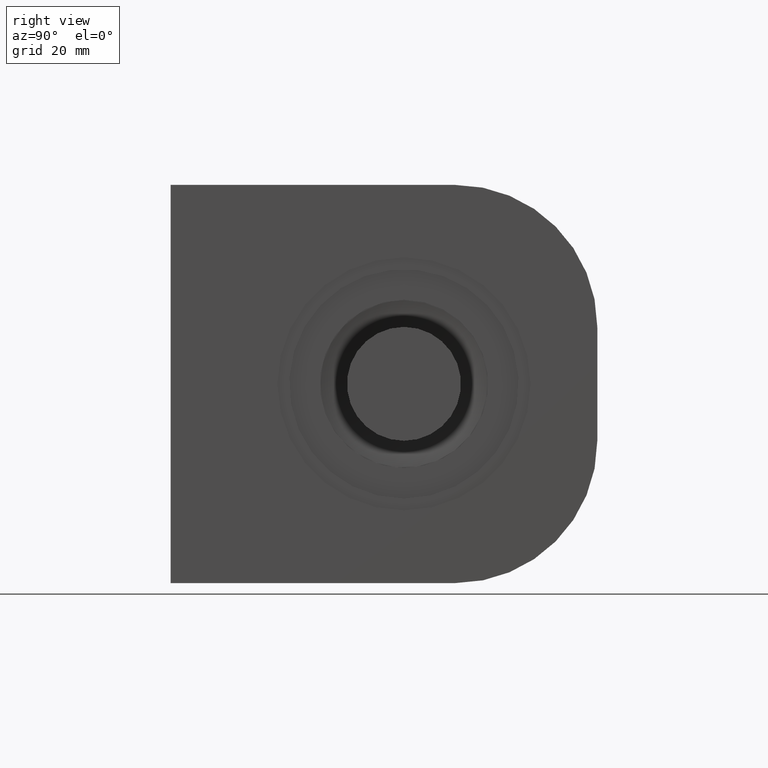
[diagram: clean part render]
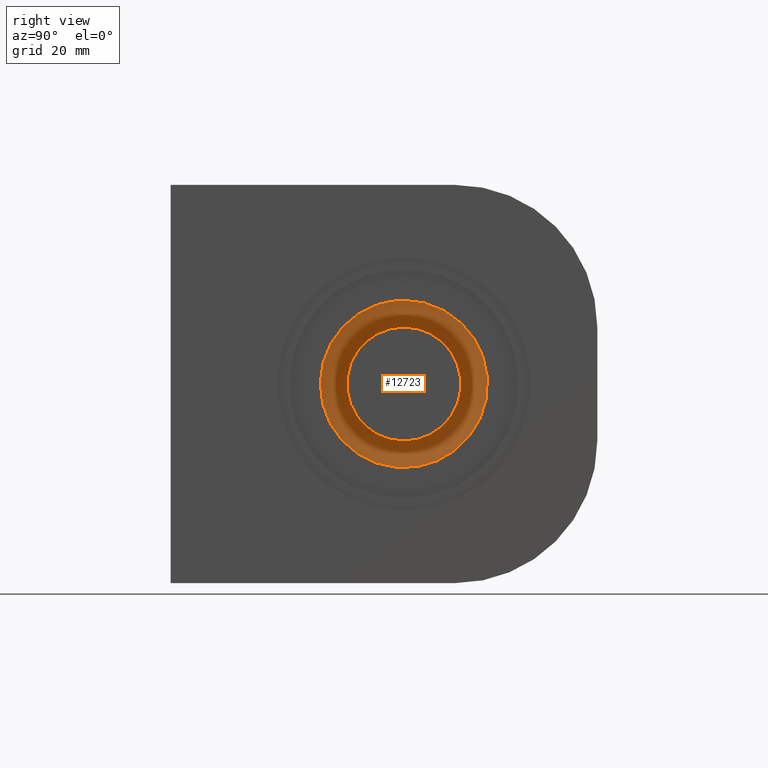
[diagram: same view with one face highlighted and labeled with its STEP entity id]
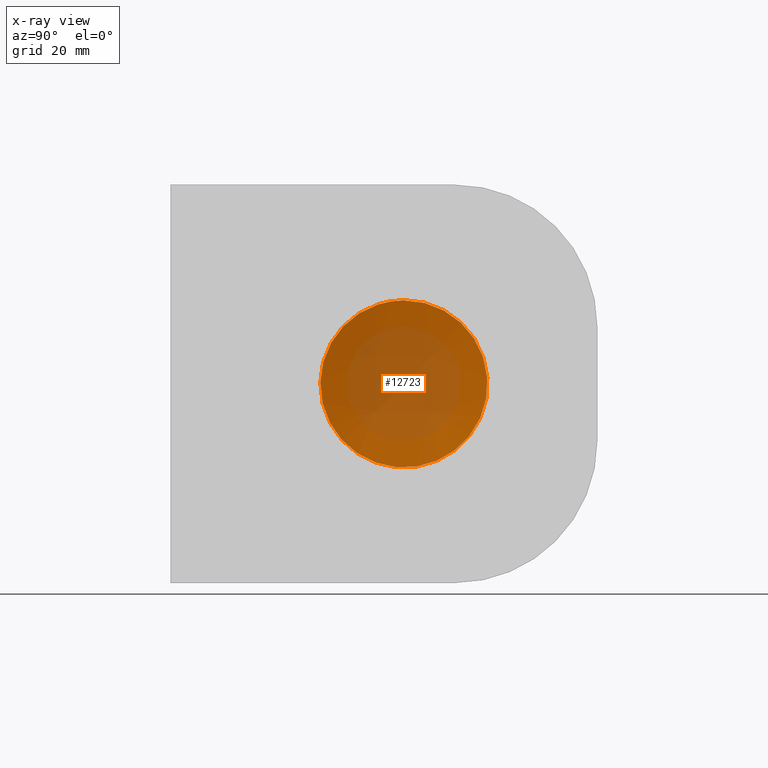
[diagram: x-ray of the same camera — body ghosted, the highlighted face saturated]
A machine part, right view. The second image highlights one B-rep face of the part: STEP entity #12723.
The next image is the same camera in x-ray: the body ghosted, the highlighted face saturated — about 46% of this face is hidden behind the body in this view.
In plain terms, the highlighted face is a freeform B-spline surface patch.
Its self-contained STEP definition (entity closure, byte-faithful):
#261 = CARTESIAN_POINT ( 'NONE',  ( 32.85015582985248273, 4.716279450311944288E-15, 14.70000087405083633 ) ) ;
#330 = CARTESIAN_POINT ( 'NONE',  ( 32.85015582985246141, 13.21653011185657434, 6.507253882928372590 ) ) ;
#537 = CARTESIAN_POINT ( 'NONE',  ( 32.85015582985248983, -14.69948976520591266, 0.9664759175423631721 ) ) ;
#601 = CARTESIAN_POINT ( 'NONE',  ( 32.85015582985246141, -4.724379164370713369, 13.92849792696717870 ) ) ;
#676 = CARTESIAN_POINT ( 'NONE',  ( 32.85015582985246141, -13.60138692752004808, 5.637251090164133949 ) ) ;
#752 = CARTESIAN_POINT ( 'NONE',  ( 32.85015582985248983, 11.95121691344251325, -8.572609143862390368 ) ) ;
#816 = CARTESIAN_POINT ( 'NONE',  ( 32.85015582985248273, 7.340444195356165658, -12.74515090680997709 ) ) ;
#1461 = CARTESIAN_POINT ( 'NONE',  ( 32.85015582985248983, 14.67690835760033607, 0.9534520726033010041 ) ) ;
#1519 = CARTESIAN_POINT ( 'NONE',  ( 32.85015582985251115, 6.515685621695420870, 13.18589888408722999 ) ) ;
#1589 = CARTESIAN_POINT ( 'NONE',  ( 32.85015582985248983, -11.08548388801033013, -9.702749700794857546 ) ) ;
#1658 = CARTESIAN_POINT ( 'NONE',  ( 32.85015582985248273, 14.32172728553158869, -3.347781939397564521 ) ) ;
#1724 = CARTESIAN_POINT ( 'NONE',  ( 32.85015582985251115, 13.92370913889226358, -4.738550460901256756 ) ) ;
#1763 = CARTESIAN_POINT ( 'NONE',  ( 34.23497730599272160, 14.89193881312068513, 14.62322130951245569 ) ) ;
#1803 = CARTESIAN_POINT ( 'NONE',  ( 32.85015582985246141, -6.074226797577788162, -13.39500687272376211 ) ) ;
#1875 = CARTESIAN_POINT ( 'NONE',  ( 32.85015582985246851, -14.70025332006685481, -0.4715298111781519030 ) ) ;
#2443 = CARTESIAN_POINT ( 'NONE',  ( 32.85015582985248273, 9.724707643714241456, 11.06531056377619215 ) ) ;
#2522 = CARTESIAN_POINT ( 'NONE',  ( 32.85015582985246851, 14.58336730005053461, 1.909478458628658837 ) ) ;
#2626 = FACE_OUTER_BOUND ( 'NONE', #12839, .T. ) ;
#2649 = EDGE_CURVE ( 'NONE', #12695, #12695, #5916, .T. ) ;
#2653 = CARTESIAN_POINT ( 'NONE',  ( 32.85015582985246141, 1.907536494845974984, -14.60767108063911301 ) ) ;
#2722 = CARTESIAN_POINT ( 'NONE',  ( 32.85015582985247562, -1.931370670582182481, -14.58064134336019180 ) ) ;
#2790 = CARTESIAN_POINT ( 'NONE',  ( 32.85015582985249694, -14.23019108730799687, -3.809914394569885676 ) ) ;
#2859 = CARTESIAN_POINT ( 'NONE',  ( 32.85015582985244720, -12.49078725903331488, -7.765285126958984208 ) ) ;
#2899 = CARTESIAN_POINT ( 'NONE',  ( 30.58082104544346080, -5.071706101898692864, -5.104262263570237046 ) ) ;
#2934 = CARTESIAN_POINT ( 'NONE',  ( 32.85015582985251115, 14.20485142380838361, -3.813886820883460427 ) ) ;
#3509 = CARTESIAN_POINT ( 'NONE',  ( 32.85015582985248983, 4.747303219379862327, 13.92062756380942368 ) ) ;
#3577 = CARTESIAN_POINT ( 'NONE',  ( 32.85015582985248273, 14.32758696798123488, 3.322570405523387560 ) ) ;
#3752 = CARTESIAN_POINT ( 'NONE',  ( 32.42654214296586446, -5.071706101898693753, 14.95981775028612226 ) ) ;
#3779 = CARTESIAN_POINT ( 'NONE',  ( 32.85015582985262483, -14.60610915616239502, 1.920253528631514328 ) ) ;
#3821 = CARTESIAN_POINT ( 'NONE',  ( 32.43853772883895203, 4.995297234017439969, -15.04970087381386179 ) ) ;
#3854 = CARTESIAN_POINT ( 'NONE',  ( 32.85015582985248983, -13.19287585655082218, -6.501630015325864598 ) ) ;
#3924 = CARTESIAN_POINT ( 'NONE',  ( 32.85015582985248273, 7.757158542403787216, -12.49603407010524769 ) ) ;
#3962 = CARTESIAN_POINT ( 'NONE',  ( 30.57048648402142277, 4.995297234017439969, 5.013476809110281707 ) ) ;
#3988 = CARTESIAN_POINT ( 'NONE',  ( 32.85015582985246141, -9.699856092166765364, 11.05611330955711047 ) ) ;
#4063 = CARTESIAN_POINT ( 'NONE',  ( 32.85015582985251115, -14.67712280647474898, -0.9520970783564954854 ) ) ;
#4570 = CARTESIAN_POINT ( 'NONE',  ( 32.85015582985244720, 6.082227605250890790, 13.39125538244988967 ) ) ;
#4636 = CARTESIAN_POINT ( 'NONE',  ( 32.85015582985249694, 13.76942185271468233, 5.169699840264342150 ) ) ;
#4702 = CARTESIAN_POINT ( 'NONE',  ( 32.85015582985251115, 14.60309699563992858, -1.938439182494420709 ) ) ;
#4847 = CARTESIAN_POINT ( 'NONE',  ( 32.85015582985246851, 6.492299388689056094, -13.19738766840335309 ) ) ;
#4913 = CARTESIAN_POINT ( 'NONE',  ( 32.85015582985248983, -12.48791897271983942, 7.770164659567750043 ) ) ;
#4989 = CARTESIAN_POINT ( 'NONE',  ( 32.85015582985249694, 12.75320002132371933, -7.373646662755956704 ) ) ;
#5057 = CARTESIAN_POINT ( 'NONE',  ( 32.85015582985247562, -7.776267949198655494, -12.48394686389401720 ) ) ;
#5120 = CARTESIAN_POINT ( 'NONE',  ( 32.85015582985249694, 3.801288419138585617, -14.20816652772803401 ) ) ;
#5770 = CARTESIAN_POINT ( 'NONE',  ( 32.85015582985248983, 14.69900370440910464, -0.9842799975894798159 ) ) ;
#5905 = CARTESIAN_POINT ( 'NONE',  ( 32.85015582985251825, -10.05638334675024836, 10.73261802250997476 ) ) ;
#5916 = B_SPLINE_CURVE_WITH_KNOTS ( 'NONE', 3,
 ( #261, #8022, #12311, #11194, #10984, #3509, #13159, #4570, #1519, #10066, #8869, #7807, #2443, #11132, #6741, #11060, #330, #4636, #8935, #13228, #3577, #7884, #2522, #1461, #8999, #5770, #4702, #1658, #2934, #1724, #13499, #6115, #4989, #752, #10203, #10486, #11332, #10271, #7233, #3924, #816, #4847, #6187, #13570, #5120, #8088, #2653, #12378, #10424, #9283, #2722, #8225, #12511, #7014, #1803, #9137, #13435, #5057, #10347, #7150, #1589, #12442, #2859, #9201, #3854, #9418, #6037, #2790, #11468, #7082, #4063, #1875, #537, #3779, #13703, #9352, #13637, #676, #5970, #11539, #4913, #8157, #6945, #5905, #3988, #8290, #8367, #11262, #12581, #11397, #601, #9632, #6321, #13849, #9565, #11816 ),
 .UNSPECIFIED., .T., .F.,
 ( 4, 2, 2, 2, 2, 2, 2, 2, 2, 2, 2, 2, 2, 2, 2, 2, 2, 2, 2, 2, 2, 1, 2, 2, 2, 2, 2, 2, 2, 2, 2, 2, 2, 2, 2, 2, 2, 2, 2, 1, 2, 2, 2, 2, 2, 2, 2, 2, 4 ),
 ( 0.000000000000000000, 0.002897332354936786418, 0.004345998532405180061, 0.005794664709873572836, 0.007243330887341966479, 0.008691997064810360121, 0.01158932941974714567, 0.01448666177468393296, 0.01738399412962072024, 0.01883266030708911215, 0.02028132648455750059, 0.02172999266202589597, 0.02317865883949428787, 0.02607599119443107169, 0.02752465737189946013, 0.02897332354936785551, 0.03187065590430463585, 0.03331932208177302429, 0.03476798825924141273, 0.03766532061417818961, 0.03911398679164657805, 0.04056265296911497342, 0.04201131914658336880, 0.04345998532405176418, 0.04635731767898854799, 0.04780598385645693643, 0.04925465003392533181, 0.05215198238886212256, 0.05360064856633050406, 0.05504931474379889944, 0.05794664709873569020, 0.06084397945367247401, 0.06229264563114086939, 0.06374131180860927171, 0.06663864416354604858, 0.06808731034101446478, 0.06953597651848286709, 0.07243330887341965785, 0.07388197505088807404, 0.07533064122835646248, 0.07677930740582486480, 0.07822797358329326711, 0.08112530593823007175, 0.08257397211569847406, 0.08402263829316687638, 0.08691997064810366713, 0.08836863682557206945, 0.08981730300304045789, 0.09271463535797724864 ),
 .UNSPECIFIED. ) ;
#5970 = CARTESIAN_POINT ( 'NONE',  ( 32.85015582985246851, -13.19167747656605449, 6.503933649586759458 ) ) ;
#6037 = CARTESIAN_POINT ( 'NONE',  ( 32.85015582985246851, -13.95276918131503052, -4.726250539920865634 ) ) ;
#6079 = CARTESIAN_POINT ( 'NONE',  ( 34.25122278073528292, 14.89193881312068513, -14.71023562917435257 ) ) ;
#6115 = CARTESIAN_POINT ( 'NONE',  ( 32.85015582985245430, 13.20525761837307677, -6.529720298848659787 ) ) ;
#6154 = CARTESIAN_POINT ( 'NONE',  ( 32.44316155508249722, -5.071706101898693753, -15.04883496039702173 ) ) ;
#6187 = CARTESIAN_POINT ( 'NONE',  ( 32.85015582985242588, 5.625736011944912462, -13.60615525146021554 ) ) ;
#6224 = CARTESIAN_POINT ( 'NONE',  ( 32.44481702224822328, -14.96661981003261843, -4.988545067521609866 ) ) ;
#6321 = CARTESIAN_POINT ( 'NONE',  ( 32.85015582985249694, -3.335118801359839402, 14.32467524121880587 ) ) ;
#6741 = CARTESIAN_POINT ( 'NONE',  ( 32.85015582985248983, 11.70113862008137318, 8.949556448003127329 ) ) ;
#6945 = CARTESIAN_POINT ( 'NONE',  ( 32.85015582985250404, -11.07344235924346343, 9.715376460067437492 ) ) ;
#6985 = CARTESIAN_POINT ( 'NONE',  ( 32.42530782009630741, 14.89193881312068513, 4.900391429821421063 ) ) ;
#7014 = CARTESIAN_POINT ( 'NONE',  ( 32.85015582985243299, -4.738176324178464682, -13.94881246789952733 ) ) ;
#7058 = CARTESIAN_POINT ( 'NONE',  ( 32.85015582985250404, 4.977657068267422669E-15, 14.70000087405085942 ) ) ;
#7082 = CARTESIAN_POINT ( 'NONE',  ( 32.85015582985251115, -14.58266936273628644, -1.915770596931853476 ) ) ;
#7150 = CARTESIAN_POINT ( 'NONE',  ( 32.85015582985246851, -9.714124868684146819, -11.07551727113562379 ) ) ;
#7233 = CARTESIAN_POINT ( 'NONE',  ( 32.85015582985248273, 8.965161292871330900, -11.68988068520776125 ) ) ;
#7807 = CARTESIAN_POINT ( 'NONE',  ( 32.85015582985248983, 8.985359439960022954, 11.67410146566432694 ) ) ;
#7884 = CARTESIAN_POINT ( 'NONE',  ( 32.85015582985249694, 14.51341347975138163, 2.383285880983747163 ) ) ;
#8022 = CARTESIAN_POINT ( 'NONE',  ( 32.85015582985247562, 0.9711536684221828697, 14.70000087405083455 ) ) ;
#8088 = CARTESIAN_POINT ( 'NONE',  ( 32.85015582985246851, 3.328617864146362848, -14.32632227255601443 ) ) ;
#8157 = CARTESIAN_POINT ( 'NONE',  ( 32.85015582985250404, -11.68194857008311516, 8.975317094047282396 ) ) ;
#8225 = CARTESIAN_POINT ( 'NONE',  ( 32.85015582985250404, -2.409501014432808841, -14.50912900425465857 ) ) ;
#8290 = CARTESIAN_POINT ( 'NONE',  ( 32.85015582985247562, -8.950657732671002620, 11.67092866378196092 ) ) ;
#8367 = CARTESIAN_POINT ( 'NONE',  ( 32.85015582985248273, -8.561309083330419512, 11.95929435160678267 ) ) ;
#8693 = ORIENTED_EDGE ( 'NONE', *, *, #2649, .F. ) ;
#8776 =( BOUNDED_SURFACE ( )  B_SPLINE_SURFACE ( 3, 3, ( 
 ( #6079, #9108, #6985, #1763 ),
 ( #3821, #10241, #3962, #9391 ),
 ( #6154, #2899, #13406, #3752 ),
 ( #10524, #6224, #10389, #11507 ) ),
 .UNSPECIFIED., .F., .F., .F. ) 
 B_SPLINE_SURFACE_WITH_KNOTS ( ( 4, 4 ),
 ( 4, 4 ),
 ( 0.000000000000000000, 1.000000000000000000 ),
 ( 0.000000000000000000, 1.000000000000000000 ),
 .UNSPECIFIED. ) 
 GEOMETRIC_REPRESENTATION_ITEM ( )  RATIONAL_B_SPLINE_SURFACE ( (
 ( 1.000000000000000000, 0.9886763592762518593, 0.9886763592762518593, 1.000000000000000000),
 ( 0.9886609294024524264, 0.9774656882402921187, 0.9774656882402921187, 0.9886609294024524264),
 ( 0.9886609294024524264, 0.9774656882402921187, 0.9774656882402921187, 0.9886609294024524264),
 ( 1.000000000000000000, 0.9886763592762518593, 0.9886763592762518593, 1.000000000000000000) ) ) 
 REPRESENTATION_ITEM ( '' )  SURFACE ( )  );
#8869 = CARTESIAN_POINT ( 'NONE',  ( 32.85015582985248273, 7.782864300858767237, 12.47997896116877570 ) ) ;
#8935 = CARTESIAN_POINT ( 'NONE',  ( 32.85015582985248983, 13.93317035145923555, 4.710511807396587258 ) ) ;
#8999 = CARTESIAN_POINT ( 'NONE',  ( 32.85015582985248273, 14.70048796871544106, 0.4696296503052082016 ) ) ;
#9108 = CARTESIAN_POINT ( 'NONE',  ( 32.43078499996077824, 14.89193881312068513, -4.989416177917878947 ) ) ;
#9137 = CARTESIAN_POINT ( 'NONE',  ( 32.85015582985247562, -6.514885275345015714, -13.18630906115576806 ) ) ;
#9201 = CARTESIAN_POINT ( 'NONE',  ( 32.85015582985247562, -12.73778518092567680, -7.353366229635107665 ) ) ;
#9283 = CARTESIAN_POINT ( 'NONE',  ( 32.85015582985248983, -0.9660023614064338071, -14.67624386853280960 ) ) ;
#9352 = CARTESIAN_POINT ( 'NONE',  ( 32.85015582985248983, -14.20448149657113390, 3.814963605818605163 ) ) ;
#9391 = CARTESIAN_POINT ( 'NONE',  ( 32.42191736043753281, 4.995297234017439969, 14.96067854163225874 ) ) ;
#9418 = CARTESIAN_POINT ( 'NONE',  ( 32.85015582985246851, -13.40095462277984950, -6.061042605798529159 ) ) ;
#9565 = CARTESIAN_POINT ( 'NONE',  ( 32.85015582985248983, -0.9711536684221734328, 14.70000087405083811 ) ) ;
#9632 = CARTESIAN_POINT ( 'NONE',  ( 32.85015582985246141, -3.800878666618025647, 14.20831215704093076 ) ) ;
#10066 = CARTESIAN_POINT ( 'NONE',  ( 32.85015582985250404, 7.365000569475141035, 12.73101940591451431 ) ) ;
#10203 = CARTESIAN_POINT ( 'NONE',  ( 32.85015582985248273, 11.66144406830514946, -8.962964671788299142 ) ) ;
#10241 = CARTESIAN_POINT ( 'NONE',  ( 30.57609005969964144, 4.995297234017439969, -5.104555963992146950 ) ) ;
#10271 = CARTESIAN_POINT ( 'NONE',  ( 32.85015582985248983, 9.706032669918249312, -11.08158281190027239 ) ) ;
#10347 = CARTESIAN_POINT ( 'NONE',  ( 32.85015582985246851, -8.970105140268891830, -11.68521402261390030 ) ) ;
#10389 = CARTESIAN_POINT ( 'NONE',  ( 32.43934079865361042, -14.96661981003261843, 4.899535862402697006 ) ) ;
#10424 = CARTESIAN_POINT ( 'NONE',  ( 32.85015582985248983, -0.4848558023039597487, -14.69983040469510627 ) ) ;
#10486 = CARTESIAN_POINT ( 'NONE',  ( 32.85015582985248273, 11.04697857882803547, -9.710215123510348434 ) ) ;
#10524 = CARTESIAN_POINT ( 'NONE',  ( 34.26493696978932491, -14.96661981003261843, -14.70766734488393190 ) ) ;
#10984 = CARTESIAN_POINT ( 'NONE',  ( 32.85015582985247562, 3.828385657926073105, 14.20085289273891505 ) ) ;
#11060 = CARTESIAN_POINT ( 'NONE',  ( 32.85015582985247562, 12.76549386341449122, 7.352099839194306874 ) ) ;
#11132 = CARTESIAN_POINT ( 'NONE',  ( 32.85015582985246141, 11.08083403294759073, 9.707015698081541188 ) ) ;
#11194 = CARTESIAN_POINT ( 'NONE',  ( 32.85015582985248273, 3.358816677094429437, 14.31934178436150340 ) ) ;
#11262 = CARTESIAN_POINT ( 'NONE',  ( 32.85015582985248273, -7.362859372538801850, 12.75935590865362812 ) ) ;
#11332 = CARTESIAN_POINT ( 'NONE',  ( 32.85015582985248983, 10.72355072260982567, -10.06603775693626446 ) ) ;
#11397 = CARTESIAN_POINT ( 'NONE',  ( 32.85015582985248983, -5.183372801858626922, 13.76425694720574278 ) ) ;
#11468 = CARTESIAN_POINT ( 'NONE',  ( 32.85015582985250404, -14.51139356141073300, -2.395917923777926450 ) ) ;
#11507 = CARTESIAN_POINT ( 'NONE',  ( 34.24869433137098440, -14.96661981003261843, 14.62066821719556309 ) ) ;
#11539 = CARTESIAN_POINT ( 'NONE',  ( 32.85015582985246141, -12.73815797413474549, 7.352607631987072345 ) ) ;
#11816 = CARTESIAN_POINT ( 'NONE',  ( 32.85015582985248273, 4.716279450311944288E-15, 14.70000087405083633 ) ) ;
#12311 = CARTESIAN_POINT ( 'NONE',  ( 32.85015582985248983, 1.932237354595014223, 14.60469705762443660 ) ) ;
#12378 = CARTESIAN_POINT ( 'NONE',  ( 32.85015582985246141, 0.9541230543352600124, -14.70033905762742599 ) ) ;
#12442 = CARTESIAN_POINT ( 'NONE',  ( 32.85015582985246851, -11.69283692341670289, -8.960198960106989574 ) ) ;
#12511 = CARTESIAN_POINT ( 'NONE',  ( 32.85015582985250404, -3.821876120070999416, -14.22692040584219519 ) ) ;
#12581 = CARTESIAN_POINT ( 'NONE',  ( 32.85015582985248983, -6.518529084636328186, 13.21087404861853543 ) ) ;
#12695 = VERTEX_POINT ( 'NONE', #7058 ) ;
#12723 = ADVANCED_FACE ( 'NONE', ( #2626 ), #8776, .F. ) ;
#12839 = EDGE_LOOP ( 'NONE', ( #8693 ) ) ;
#13159 = CARTESIAN_POINT ( 'NONE',  ( 32.85015582985246851, 5.198036583318867088, 13.75862017204296883 ) ) ;
#13228 = CARTESIAN_POINT ( 'NONE',  ( 32.85015582985248273, 14.21171531459184934, 3.788047696030337530 ) ) ;
#13406 = CARTESIAN_POINT ( 'NONE',  ( 30.57521779217771751, -5.071706101898692864, 5.013188349102316366 ) ) ;
#13435 = CARTESIAN_POINT ( 'NONE',  ( 32.85015582985246141, -7.364925865836712049, -12.73107787259017698 ) ) ;
#13499 = CARTESIAN_POINT ( 'NONE',  ( 32.85015582985248273, 13.75918593992704864, -5.196762504726742726 ) ) ;
#13570 = CARTESIAN_POINT ( 'NONE',  ( 32.85015582985248273, 4.722768873746684193, -13.92900728301547097 ) ) ;
#13637 = CARTESIAN_POINT ( 'NONE',  ( 32.85015582985246851, -13.92480198707168881, 4.735096324209927765 ) ) ;
#13703 = CARTESIAN_POINT ( 'NONE',  ( 32.85015582985261062, -14.32291112481197892, 3.343379391806602818 ) ) ;
#13849 = CARTESIAN_POINT ( 'NONE',  ( 32.85015582985248273, -1.926078689931113752, 14.60470802622204545 ) ) ;